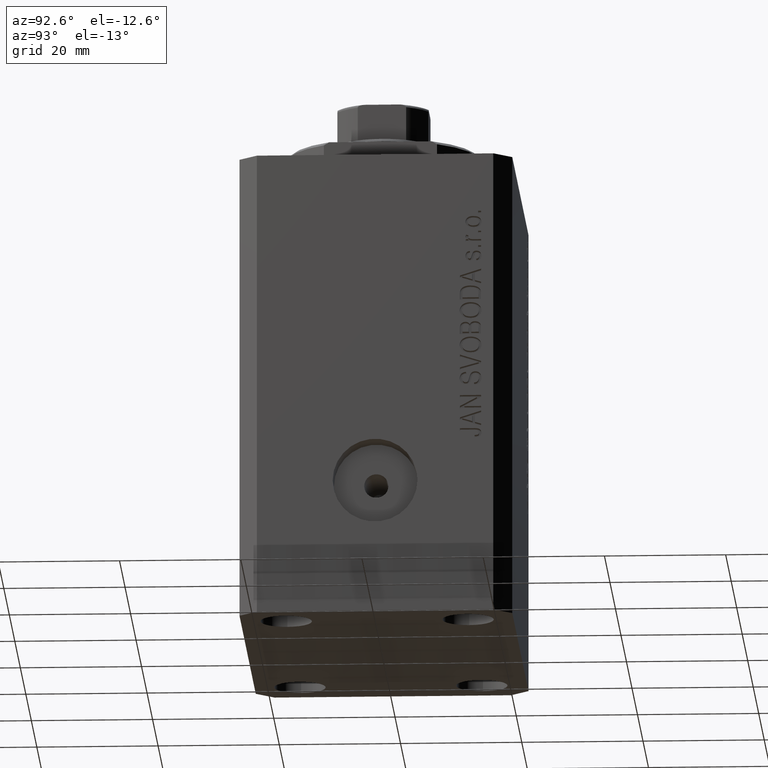
[diagram: clean part render]
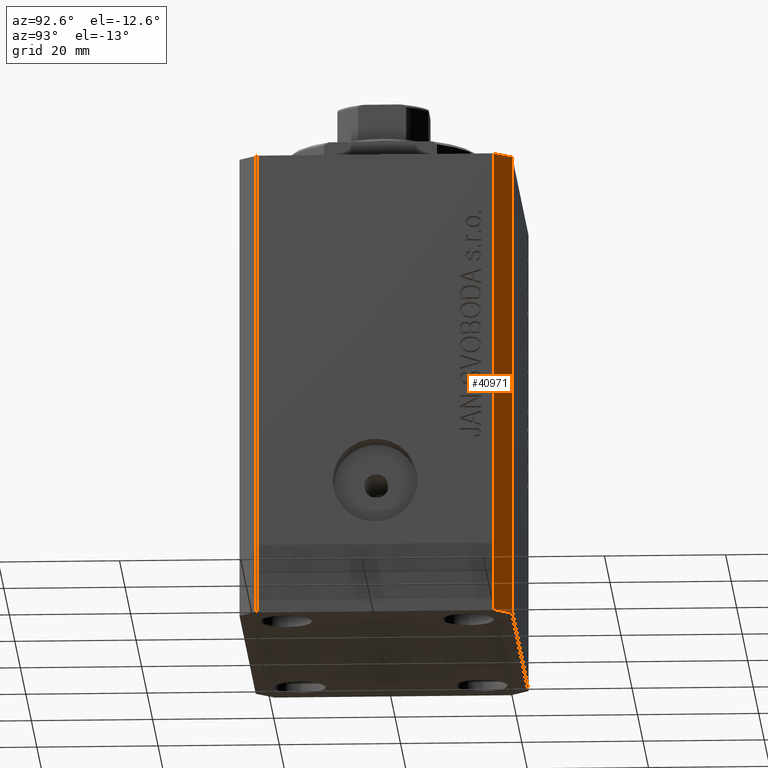
[diagram: same view with one face highlighted and labeled with its STEP entity id]
A machine part, auxiliary view. The second image highlights one B-rep face of the part: STEP entity #40971.
In plain terms, the highlighted planar face has unit normal (0.7071, 0.7071, 0).
Its self-contained STEP definition (entity closure, byte-faithful):
#729 = FACE_OUTER_BOUND ( 'NONE', #41453, .T. ) ;
#1000 = ORIENTED_EDGE ( 'NONE', *, *, #30310, .F. ) ;
#1558 = ORIENTED_EDGE ( 'NONE', *, *, #23087, .F. ) ;
#1968 = CARTESIAN_POINT ( 'NONE',  ( 29.49999999999707967, 22.49999999999952038, 0.000000000000000000 ) ) ;
#2037 = DIRECTION ( 'NONE',  ( -0.7071067811865344721, 0.7071067811865606734, 0.000000000000000000 ) ) ;
#2111 = CARTESIAN_POINT ( 'NONE',  ( 32.49999999999702993, 19.49999999999945999, 0.000000000000000000 ) ) ;
#4348 = LINE ( 'NONE', #18085, #23257 ) ;
#6242 = ORIENTED_EDGE ( 'NONE', *, *, #38017, .T. ) ;
#7899 = CARTESIAN_POINT ( 'NONE',  ( 29.49999999999707967, 22.49999999999952038, -77.00000000000000000 ) ) ;
#10000 = EDGE_CURVE ( 'NONE', #38007, #25468, #4348, .T. ) ;
#11937 = CARTESIAN_POINT ( 'NONE',  ( 32.49999999999702993, 19.49999999999945999, -77.00000000000000000 ) ) ;
#12658 = CARTESIAN_POINT ( 'NONE',  ( 29.49999999999707967, 22.49999999999952038, -77.00000000000000000 ) ) ;
#12829 = VECTOR ( 'NONE', #32243, 1000.000000000000000 ) ;
#13530 = VERTEX_POINT ( 'NONE', #16785 ) ;
#14884 = DIRECTION ( 'NONE',  ( 0.000000000000000000, 0.000000000000000000, 1.000000000000000000 ) ) ;
#15278 = LINE ( 'NONE', #38644, #30470 ) ;
#16785 = CARTESIAN_POINT ( 'NONE',  ( 32.49999999999702993, 19.49999999999945999, 0.000000000000000000 ) ) ;
#17820 = AXIS2_PLACEMENT_3D ( 'NONE', #44401, #21419, #28152 ) ;
#18085 = CARTESIAN_POINT ( 'NONE',  ( 32.49999999999702993, 19.49999999999945999, -77.00000000000000000 ) ) ;
#18545 = LINE ( 'NONE', #2111, #12829 ) ;
#19210 = VECTOR ( 'NONE', #14884, 1000.000000000000000 ) ;
#19259 = ORIENTED_EDGE ( 'NONE', *, *, #10000, .T. ) ;
#21419 = DIRECTION ( 'NONE',  ( 0.7071067811865606734, 0.7071067811865344721, -0.000000000000000000 ) ) ;
#23087 = EDGE_CURVE ( 'NONE', #13530, #27460, #18545, .T. ) ;
#23257 = VECTOR ( 'NONE', #2037, 1000.000000000000000 ) ;
#25468 = VERTEX_POINT ( 'NONE', #12658 ) ;
#27105 = PLANE ( 'NONE',  #17820 ) ;
#27460 = VERTEX_POINT ( 'NONE', #1968 ) ;
#28152 = DIRECTION ( 'NONE',  ( -0.7071067811865344721, 0.7071067811865606734, 0.000000000000000000 ) ) ;
#30310 = EDGE_CURVE ( 'NONE', #38007, #13530, #15278, .T. ) ;
#30470 = VECTOR ( 'NONE', #42236, 1000.000000000000000 ) ;
#32243 = DIRECTION ( 'NONE',  ( -0.7071067811865344721, 0.7071067811865606734, 0.000000000000000000 ) ) ;
#38007 = VERTEX_POINT ( 'NONE', #11937 ) ;
#38017 = EDGE_CURVE ( 'NONE', #25468, #27460, #38690, .T. ) ;
#38644 = CARTESIAN_POINT ( 'NONE',  ( 32.49999999999702993, 19.49999999999945999, -77.00000000000000000 ) ) ;
#38690 = LINE ( 'NONE', #7899, #19210 ) ;
#40971 = ADVANCED_FACE ( 'NONE', ( #729 ), #27105, .T. ) ;
#41453 = EDGE_LOOP ( 'NONE', ( #1558, #1000, #19259, #6242 ) ) ;
#42236 = DIRECTION ( 'NONE',  ( 0.000000000000000000, 0.000000000000000000, 1.000000000000000000 ) ) ;
#44401 = CARTESIAN_POINT ( 'NONE',  ( 32.49999999999702993, 19.49999999999945999, -77.00000000000000000 ) ) ;